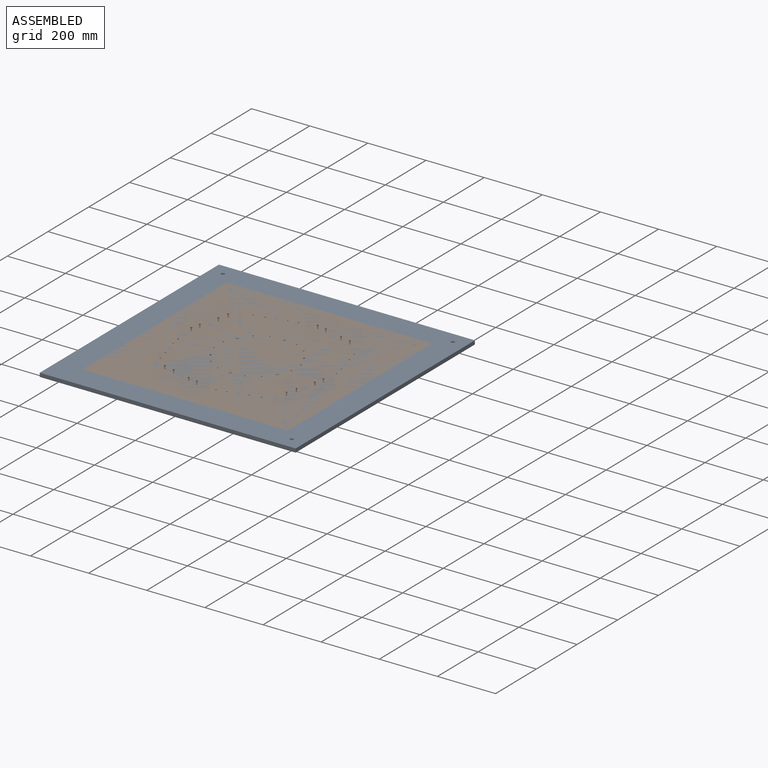
[diagram: assembled view]
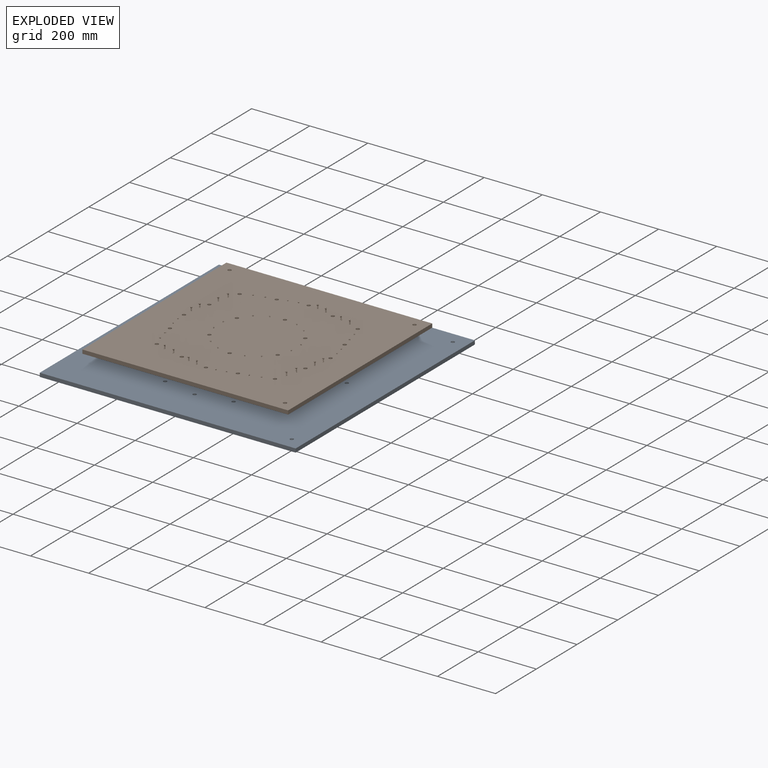
[diagram: exploded view]
GUIDED TOUR — FREECAD ASSEMBLY "Stator_Mold_BoltShaftLayer_Circular"

This assembly has 2 components, labeled P0..P1 below (a component is one placed body or linked part; the same part can appear more than once), held together by 0 modeled joints plus 1 derived contact edge. A joint is a constraint between two components; its type names the relative motion it leaves free:
  CONTACT — a derived adjacency edge — the two components touch in the source model (clearance under 2% of the assembly's diagonal); it is measured from the geometry, not a modeled constraint.
Axis/direction vectors are unit vectors and 'through' points are millimeter coordinates, both in the assembly's world frame.

MATES
  1. CONTACT "contact_0_1": P0 <-> P1, contact direction (0.000, 0.000, 1.000) through (116.82, 61.81, 0.00) mm (derived from contact, not a modeled constraint)

ASSEMBLY ORDER
  1. P1 — the base component [order verified]
  2. P0 [order verified]
Order-tag legend:
  [order verified] — this step's position reverses a verified removal order: the component was checked to insert without passing through the ones already placed.

Of the 2 components, 2 carry a construction recipe — the FreeCAD feature program (sketches with constraints, then the solid features that consume them) that regenerates the part from scratch, quoted from this document or from the linked companion document it references; the rest are supplied as boundary geometry only. The tour below walks the components in assembly order: each is shown spotlighted twice — in the assembled view, then in the exploded view, where a leader line traces a displaced component back to its assembled socket (components that stay in place when exploded have no leader line; saturated green if recipe-attached, orange if geometry-only; every other component desaturated gray) — followed by its recipe or geometry summary and the mates that hold it.
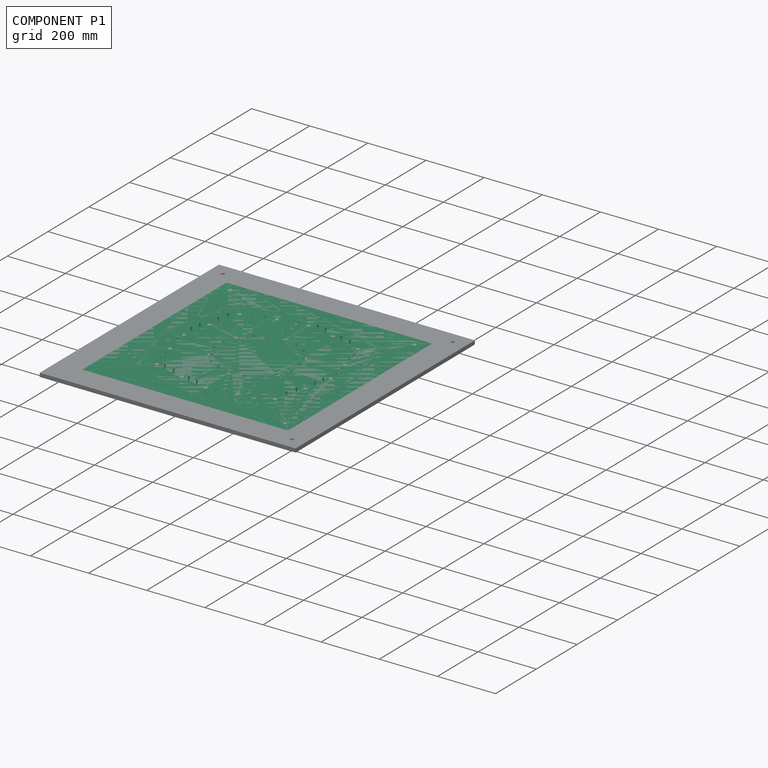
[diagram: component P1 — assembled]
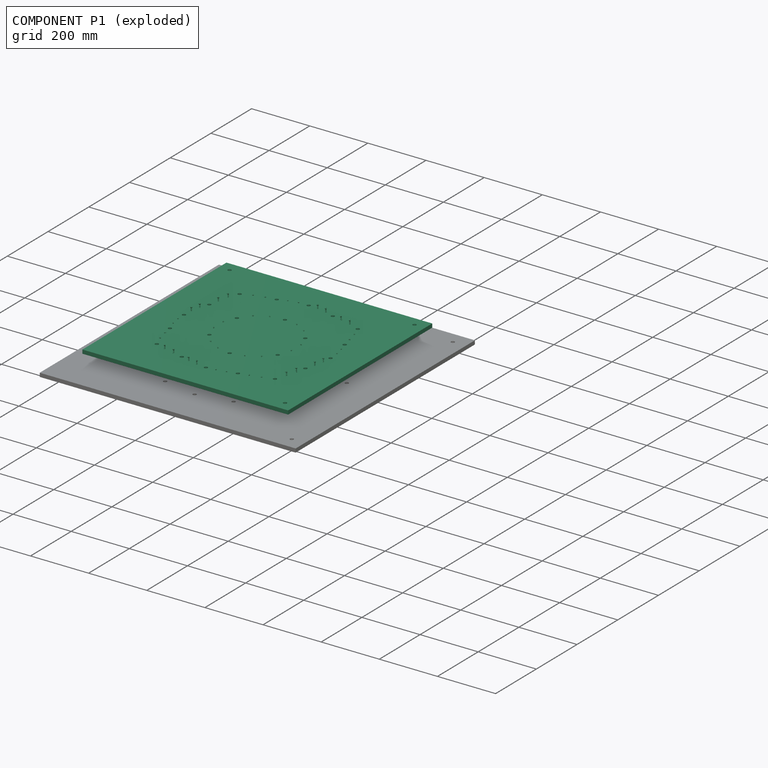
[diagram: component P1 — exploded]
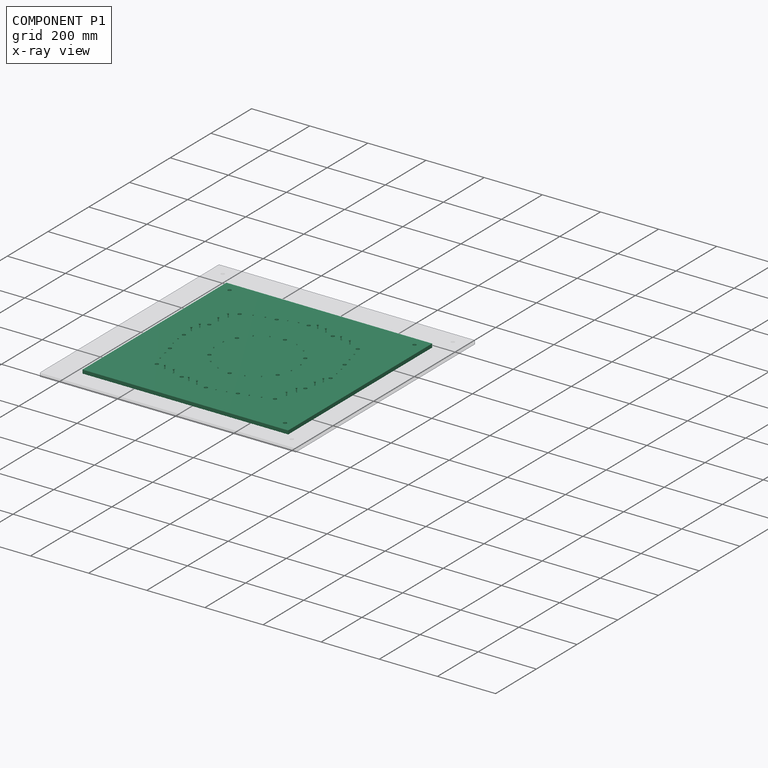
[diagram: component P1 — x-ray view]
COMPONENT P1 — recipe-attached ("Stator_Mold_BoltShaftLayer_Assembly", modeled in this document).
Held by: resting contact with P0 (derived edge).
Construction recipe (the document's own serialized feature program — sketch geometry with constraints, then the solid features built on it; lengths are millimeters unless a unit is written):

FEATURE [PartDesign::Plane] DatumPlane001  label="DatumPlane"
  AttachmentOffset = pos=(0,0,13) rot=(0,0,1;0rad)
  Length = 849.239
  MapMode = 5
  Placement = pos=(0,0,13) rot=(0,0,1;0rad)
  ResizeMode = 0
  Support = -> [XY_Plane]
  Width = 849.239
  expr: .AttachmentOffset.Base.z = Spreadsheet.StatorThickness
FEATURE [Sketcher::SketchObject] Sketch005  label="OuterScrewsSketch"
  AttachmentOffset = pos=(0,0,0) rot=(0,0,1;0.785398rad)
  FullyConstrained = true
  MapMode = 5
  Placement = pos=(0,0,13) rot=(0,0,1;0.785398rad)
  Support = -> [DatumPlane001]
  expr: .AttachmentOffset.Rotation.Angle = Spreadsheet.StatorMoldHolesSketchAngle
  expr: Constraints[16] = Spreadsheet.EarAngle
  expr: Constraints[21] = Spreadsheet.SpokeAngle
  expr: Constraints[23] = Spreadsheet.StatorMoldScrewHoleRadius
  expr: Constraints[25] = Spreadsheet.SpokeAngle
  expr: Constraints[29] = Spreadsheet.LargeHoleAngle
  expr: Constraints[34] = Spreadsheet.SpokeAngle
  expr: Constraints[38] = Spreadsheet.SpokeAngle
  expr: Constraints[3] = Spreadsheet.LengthMiddleHoles
  expr: Constraints[6] = Spreadsheet.EarSize
  sketch-geometry (18):
    g0: Circle CenterX=0 CenterY=0 CenterZ=0 NormalX=0 NormalY=0 NormalZ=1 AngleXU=0 Radius=252.29
    g1: LineSegment StartX=0 StartY=0 StartZ=0 EndX=0 EndY=-252.29 EndZ=0
    g2: Circle CenterX=0 CenterY=-252.29 CenterZ=0 NormalX=0 NormalY=0 NormalZ=1 AngleXU=0 Radius=35
    g3: LineSegment StartX=17.7851 StartY=-282.434 StartZ=0 EndX=128.2 EndY=-217.29 EndZ=0
    g4: LineSegment StartX=-17.7851 StartY=-282.434 StartZ=0 EndX=-128.2 EndY=-217.29 EndZ=0
    g5: LineSegment StartX=0 StartY=0 StartZ=0 EndX=-178.396 EndY=-178.396 EndZ=0
    g6: LineSegment StartX=0 StartY=0 StartZ=0 EndX=178.396 EndY=-178.396 EndZ=0
    g7: ArcOfCircle CenterX=0 CenterY=0 CenterZ=0 NormalX=0 NormalY=0 NormalZ=1 AngleXU=0 Radius=252.29 StartAngle=3.92699 EndAngle=4.17936
    g8: ArcOfCircle CenterX=0 CenterY=0 CenterZ=0 NormalX=0 NormalY=0 NormalZ=1 AngleXU=0 Radius=252.29 StartAngle=5.24542 EndAngle=5.49779
    g9: LineSegment StartX=0 StartY=0 StartZ=0 EndX=-153.584 EndY=-200.155 EndZ=0
    g10: Circle CenterX=-153.584 CenterY=-200.155 CenterZ=0 NormalX=0 NormalY=0 NormalZ=1 AngleXU=0 Radius=2
    g11: LineSegment StartX=0 StartY=0 StartZ=0 EndX=-126.145 EndY=-218.49 EndZ=0
    g12: Circle CenterX=-126.145 CenterY=-218.49 CenterZ=0 NormalX=0 NormalY=0 NormalZ=1 AngleXU=0 Radius=2
    g13: LineSegment StartX=0 StartY=0 StartZ=0 EndX=-96.5472 EndY=-233.086 EndZ=0
    g14: LineSegment StartX=0 StartY=0 StartZ=0 EndX=-67.7752 EndY=-252.941 EndZ=0
    g15: Circle CenterX=-67.7752 CenterY=-252.941 CenterZ=0 NormalX=0 NormalY=0 NormalZ=1 AngleXU=0 Radius=2
    g16: LineSegment StartX=0 StartY=0 StartZ=0 EndX=-35.7851 EndY=-271.815 EndZ=0
    g17: Circle CenterX=-35.7851 CenterY=-271.815 CenterZ=0 NormalX=0 NormalY=0 NormalZ=1 AngleXU=0 Radius=2
  constraints (44):
    c: Coincident(g0,g-1)
    c: Coincident(g1,g-1)
    c: Vertical(g1)
    c: Radius(g0) = 252.29
    c: Coincident(g2,g1)
    c: Tangent(g3,g0)
    c: Radius(g2) = 35
    c: Symmetric(g6,g5,g1)
    c: Coincident(g7,g5)
    c: Coincident(g7,g4)
    c: Coincident(g8,g6)
    c: Coincident(g8,g3)
    c: Coincident(g6,g5)
    c: Coincident(g5,g7)
    c: Coincident(g5,g-1)
    c: Coincident(g8,g5)
    c: Angle(g5,g6) = 1.5708
    c: Tangent(g3,g2) = -1.5708
    c: Tangent(g4,g0) = 1.5708
    c: Coincident(g9,g5)
    c: PointOnObject(g9,g7)
    c: Angle(g5,g9) = 0.1309
    c: Coincident(g10,g9)
    c: Radius(g10) = 2
    c: Coincident(g11,g-1)
    c: Angle(g9,g11) = 0.1309
    c: PointOnObject(g12,g7)
    c: Coincident(g12,g11)
    c: Coincident(g13,g-1)
    c: Angle(g5,g13) = 0.392699
    c: Tangent(g4,g2) = 1.5708
    c: PointOnObject(g1,g0)
    c: Coincident(g14,g-1)
    c: PointOnObject(g14,g4)
    c: Angle(g13,g14) = 0.1309
    c: Coincident(g15,g14)
    c: Coincident(g16,g-1)
    c: PointOnObject(g16,g4)
    c: Angle(g14,g16) = 0.1309
    c: Coincident(g17,g16)
    c: PointOnObject(g13,g0)
    c: Equal(g17,g15)
    c: Equal(g15,g12)
    c: Equal(g12,g10)
FEATURE [PartDesign::Mirrored] Mirrored  label="OuterScrewsMirrored"
  MirrorPlane = -> Sketch005 [V_Axis]
FEATURE [PartDesign::PolarPattern] PolarPattern002  label="OuterScrewsPolarPattern"
  Angle = 360
  Axis = -> Sketch005 [N_Axis]
  Occurrences = 4
  expr: Occurrences = Spreadsheet.NumberOfHoles
FEATURE [Sketcher::SketchObject] Sketch  label="InnerScrewsSketch"
  FullyConstrained = true
  MapMode = 5
  Placement = pos=(0,0,13) rot=(0,0,1;0rad)
  Support = -> [DatumPlane001]
  expr: Constraints[3] = Spreadsheet.IslandInnerRadius
  expr: Constraints[4] = Spreadsheet.StatorMoldIslandScrewAngle
  expr: Constraints[6] = Spreadsheet.StatorMoldScrewHoleRadius
  sketch-geometry (3):
    g0: Circle CenterX=0 CenterY=0 CenterZ=0 NormalX=0 NormalY=0 NormalZ=1 AngleXU=0 Radius=135.644
    g1: LineSegment StartX=0 StartY=0 StartZ=0 EndX=-46.393 EndY=127.464 EndZ=0
    g2: Circle CenterX=-46.393 CenterY=127.464 CenterZ=0 NormalX=0 NormalY=0 NormalZ=1 AngleXU=0 Radius=2
  constraints (7):
    c: Coincident(g0,g-1)
    c: Coincident(g1,g0)
    c: PointOnObject(g1,g0)
    c: Radius(g0) = 135.644
    c: Angle(g-2,g1) = 0.349066
    c: Coincident(g2,g1)
    c: Radius(g2) = 2
FEATURE [PartDesign::FeatureBase] BaseFeature
  BaseFeature = -> Binder
FEATURE [PartDesign::Pocket] Pocket001  label="OuterScrewsPocket"
  BaseFeature = -> BaseFeature
  Direction = (0,0,-1)
  Length = 5
  Length2 = 100
  Profile = -> Sketch005
  Type = 1
FEATURE [PartDesign::MultiTransform] MultiTransform  label="OuterScrewsMultiTransform"
  BaseFeature = -> Pocket001
  Originals = -> [Pocket001]
  Transformations = -> [Mirrored,PolarPattern002]
FEATURE [PartDesign::Pocket] Pocket  label="InnerScrewsPocket"
  BaseFeature = -> MultiTransform
  Direction = (0,0,-1)
  Length = 5
  Length2 = 100
  Profile = -> Sketch
  Type = 1
FEATURE [PartDesign::PolarPattern] PolarPattern  label="InnerScrewsPolarPattern"
  Angle = 360
  Axis = -> Z_Axis
  BaseFeature = -> Pocket
  Occurrences = 18
  Originals = -> [Pocket]
  expr: Occurrences = Spreadsheet.StatorMoldIslandNumberOfScrewSectors
FEATURE [PartDesign::Body] Body  label="Stator_Mold_BoltShaftLayer"
  BaseFeature = -> Binder
  Group = -> [BaseFeature,DatumPlane001,Sketch005,Pocket001,MultiTransform,Mirrored,PolarPattern002,Sketch,Pocket,PolarPattern]
  Openafpm_Flat = true
  Origin = -> Origin
  Tip = -> PolarPattern
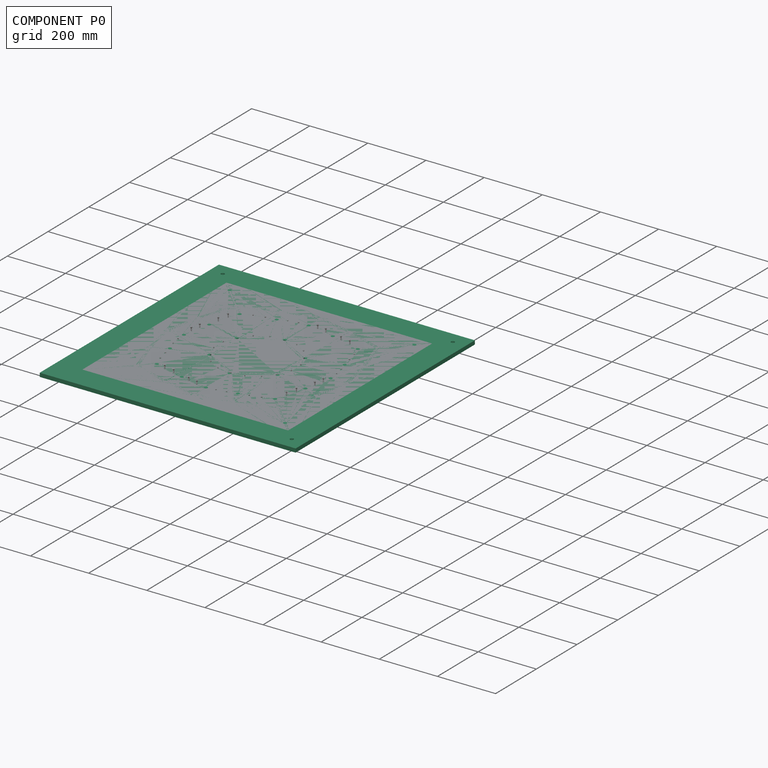
[diagram: component P0 — assembled]
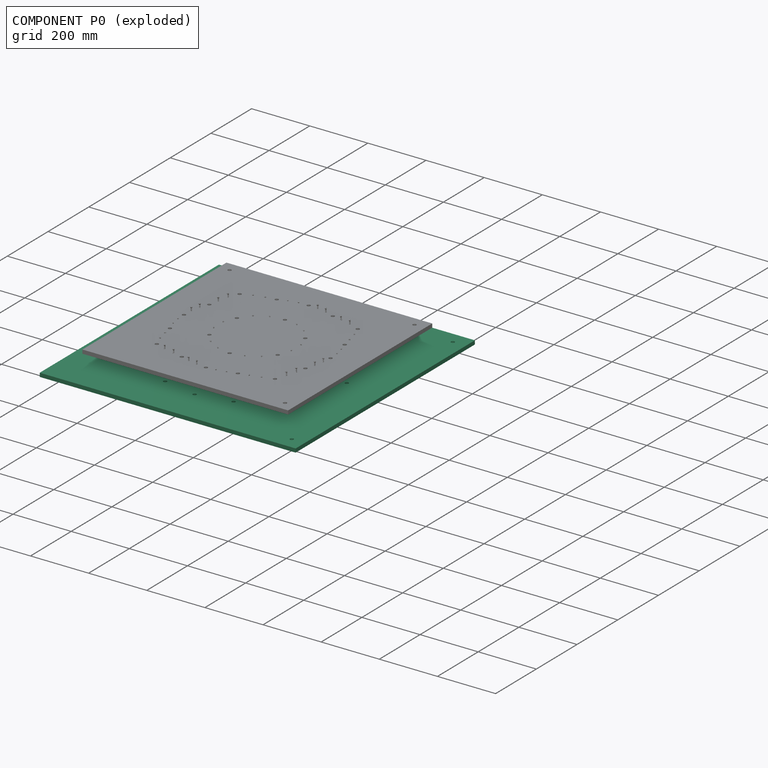
[diagram: component P0 — exploded]
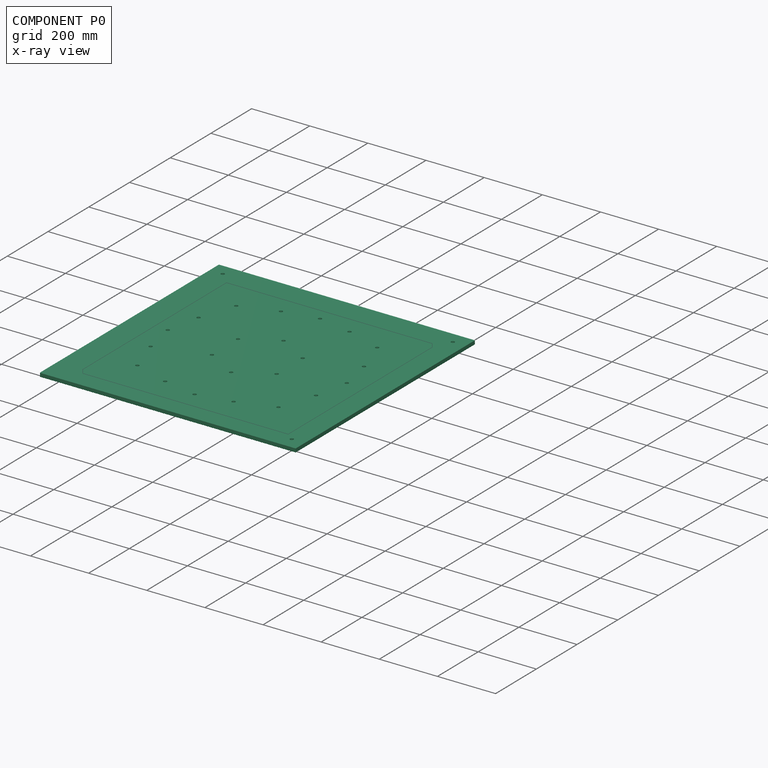
[diagram: component P0 — x-ray view]
COMPONENT P0 — recipe-attached ("Stator_Mold_BoltShaftPattern", modeled in this document).
Held by: resting contact with P1 (derived edge).
Construction recipe (the document's own serialized feature program — sketch geometry with constraints, then the solid features built on it; lengths are millimeters unless a unit is written):

FEATURE [PartDesign::Plane] DatumPlane001  label="DatumPlane"
  AttachmentOffset = pos=(0,0,13) rot=(0,0,1;0rad)
  Length = 849.239
  MapMode = 5
  Placement = pos=(0,0,13) rot=(0,0,1;0rad)
  ResizeMode = 0
  Support = -> [XY_Plane]
  Width = 849.239
  expr: .AttachmentOffset.Base.z = Spreadsheet.StatorThickness
FEATURE [Sketcher::SketchObject] Sketch005  label="OuterScrewsSketch"
  AttachmentOffset = pos=(0,0,0) rot=(0,0,1;0.785398rad)
  FullyConstrained = true
  MapMode = 5
  Placement = pos=(0,0,13) rot=(0,0,1;0.785398rad)
  Support = -> [DatumPlane001]
  expr: .AttachmentOffset.Rotation.Angle = Spreadsheet.StatorMoldHolesSketchAngle
  expr: Constraints[16] = Spreadsheet.EarAngle
  expr: Constraints[21] = Spreadsheet.SpokeAngle
  expr: Constraints[23] = Spreadsheet.StatorMoldScrewHoleRadius
  expr: Constraints[25] = Spreadsheet.SpokeAngle
  expr: Constraints[29] = Spreadsheet.LargeHoleAngle
  expr: Constraints[34] = Spreadsheet.SpokeAngle
  expr: Constraints[38] = Spreadsheet.SpokeAngle
  expr: Constraints[3] = Spreadsheet.LengthMiddleHoles
  expr: Constraints[6] = Spreadsheet.EarSize
  sketch-geometry (18):
    g0: Circle CenterX=0 CenterY=0 CenterZ=0 NormalX=0 NormalY=0 NormalZ=1 AngleXU=0 Radius=252.29
    g1: LineSegment StartX=0 StartY=0 StartZ=0 EndX=0 EndY=-252.29 EndZ=0
    g2: Circle CenterX=0 CenterY=-252.29 CenterZ=0 NormalX=0 NormalY=0 NormalZ=1 AngleXU=0 Radius=35
    g3: LineSegment StartX=17.7851 StartY=-282.434 StartZ=0 EndX=128.2 EndY=-217.29 EndZ=0
    g4: LineSegment StartX=-17.7851 StartY=-282.434 StartZ=0 EndX=-128.2 EndY=-217.29 EndZ=0
    g5: LineSegment StartX=0 StartY=0 StartZ=0 EndX=-178.396 EndY=-178.396 EndZ=0
    g6: LineSegment StartX=0 StartY=0 StartZ=0 EndX=178.396 EndY=-178.396 EndZ=0
    g7: ArcOfCircle CenterX=0 CenterY=0 CenterZ=0 NormalX=0 NormalY=0 NormalZ=1 AngleXU=0 Radius=252.29 StartAngle=3.92699 EndAngle=4.17936
    g8: ArcOfCircle CenterX=0 CenterY=0 CenterZ=0 NormalX=0 NormalY=0 NormalZ=1 AngleXU=0 Radius=252.29 StartAngle=5.24542 EndAngle=5.49779
    g9: LineSegment StartX=0 StartY=0 StartZ=0 EndX=-153.584 EndY=-200.155 EndZ=0
    g10: Circle CenterX=-153.584 CenterY=-200.155 CenterZ=0 NormalX=0 NormalY=0 NormalZ=1 AngleXU=0 Radius=2
    g11: LineSegment StartX=0 StartY=0 StartZ=0 EndX=-126.145 EndY=-218.49 EndZ=0
    g12: Circle CenterX=-126.145 CenterY=-218.49 CenterZ=0 NormalX=0 NormalY=0 NormalZ=1 AngleXU=0 Radius=2
    g13: LineSegment StartX=0 StartY=0 StartZ=0 EndX=-96.5472 EndY=-233.086 EndZ=0
    g14: LineSegment StartX=0 StartY=0 StartZ=0 EndX=-67.7752 EndY=-252.941 EndZ=0
    g15: Circle CenterX=-67.7752 CenterY=-252.941 CenterZ=0 NormalX=0 NormalY=0 NormalZ=1 AngleXU=0 Radius=2
    g16: LineSegment StartX=0 StartY=0 StartZ=0 EndX=-35.7851 EndY=-271.815 EndZ=0
    g17: Circle CenterX=-35.7851 CenterY=-271.815 CenterZ=0 NormalX=0 NormalY=0 NormalZ=1 AngleXU=0 Radius=2
  constraints (44):
    c: Coincident(g0,g-1)
    c: Coincident(g1,g-1)
    c: Vertical(g1)
    c: Radius(g0) = 252.29
    c: Coincident(g2,g1)
    c: Tangent(g3,g0)
    c: Radius(g2) = 35
    c: Symmetric(g6,g5,g1)
    c: Coincident(g7,g5)
    c: Coincident(g7,g4)
    c: Coincident(g8,g6)
    c: Coincident(g8,g3)
    c: Coincident(g6,g5)
    c: Coincident(g5,g7)
    c: Coincident(g5,g-1)
    c: Coincident(g8,g5)
    c: Angle(g5,g6) = 1.5708
    c: Tangent(g3,g2) = -1.5708
    c: Tangent(g4,g0) = 1.5708
    c: Coincident(g9,g5)
    c: PointOnObject(g9,g7)
    c: Angle(g5,g9) = 0.1309
    c: Coincident(g10,g9)
    c: Radius(g10) = 2
    c: Coincident(g11,g-1)
    c: Angle(g9,g11) = 0.1309
    c: PointOnObject(g12,g7)
    c: Coincident(g12,g11)
    c: Coincident(g13,g-1)
    c: Angle(g5,g13) = 0.392699
    c: Tangent(g4,g2) = 1.5708
    c: PointOnObject(g1,g0)
    c: Coincident(g14,g-1)
    c: PointOnObject(g14,g4)
    c: Angle(g13,g14) = 0.1309
    c: Coincident(g15,g14)
    c: Coincident(g16,g-1)
    c: PointOnObject(g16,g4)
    c: Angle(g14,g16) = 0.1309
    c: Coincident(g17,g16)
    c: PointOnObject(g13,g0)
    c: Equal(g17,g15)
    c: Equal(g15,g12)
    c: Equal(g12,g10)
FEATURE [PartDesign::Mirrored] Mirrored  label="OuterScrewsMirrored"
  MirrorPlane = -> Sketch005 [V_Axis]
FEATURE [PartDesign::PolarPattern] PolarPattern002  label="OuterScrewsPolarPattern"
  Angle = 360
  Axis = -> Sketch005 [N_Axis]
  Occurrences = 4
  expr: Occurrences = Spreadsheet.NumberOfHoles
FEATURE [Sketcher::SketchObject] Sketch  label="InnerScrewsSketch"
  FullyConstrained = true
  MapMode = 5
  Placement = pos=(0,0,13) rot=(0,0,1;0rad)
  Support = -> [DatumPlane001]
  expr: Constraints[3] = Spreadsheet.IslandInnerRadius
  expr: Constraints[4] = Spreadsheet.StatorMoldIslandScrewAngle
  expr: Constraints[6] = Spreadsheet.StatorMoldScrewHoleRadius
  sketch-geometry (3):
    g0: Circle CenterX=0 CenterY=0 CenterZ=0 NormalX=0 NormalY=0 NormalZ=1 AngleXU=0 Radius=135.644
    g1: LineSegment StartX=0 StartY=0 StartZ=0 EndX=-46.393 EndY=127.464 EndZ=0
    g2: Circle CenterX=-46.393 CenterY=127.464 CenterZ=0 NormalX=0 NormalY=0 NormalZ=1 AngleXU=0 Radius=2
  constraints (7):
    c: Coincident(g0,g-1)
    c: Coincident(g1,g0)
    c: PointOnObject(g1,g0)
    c: Radius(g0) = 135.644
    c: Angle(g-2,g1) = 0.349066
    c: Coincident(g2,g1)
    c: Radius(g2) = 2
FEATURE [PartDesign::FeatureBase] BaseFeature
  BaseFeature = -> Binder
FEATURE [PartDesign::Pocket] Pocket001  label="OuterScrewsPocket"
  BaseFeature = -> BaseFeature
  Direction = (0,0,-1)
  Length = 5
  Length2 = 100
  Profile = -> Sketch005
  Type = 1
FEATURE [PartDesign::MultiTransform] MultiTransform  label="OuterScrewsMultiTransform"
  BaseFeature = -> Pocket001
  Originals = -> [Pocket001]
  Transformations = -> [Mirrored,PolarPattern002]
FEATURE [PartDesign::Pocket] Pocket  label="InnerScrewsPocket"
  BaseFeature = -> MultiTransform
  Direction = (0,0,-1)
  Length = 5
  Length2 = 100
  Profile = -> Sketch
  Type = 1
FEATURE [PartDesign::PolarPattern] PolarPattern  label="InnerScrewsPolarPattern"
  Angle = 360
  Axis = -> Z_Axis
  BaseFeature = -> Pocket
  Occurrences = 18
  Originals = -> [Pocket]
  expr: Occurrences = Spreadsheet.StatorMoldIslandNumberOfScrewSectors
FEATURE [PartDesign::Body] Body  label="Stator_Mold_BoltShaftLayer"
  BaseFeature = -> Binder
  Group = -> [BaseFeature,DatumPlane001,Sketch005,Pocket001,MultiTransform,Mirrored,PolarPattern002,Sketch,Pocket,PolarPattern]
  Openafpm_Flat = true
  Origin = -> Origin
  Tip = -> PolarPattern
PROVENANCE & LICENSES
Assembly and component geometry: a FreeCAD (.FCStd) document from a public repository crawl; components, placements and joints were extracted with FreeCAD and each solid tessellated.
Construction recipes: the document's own serialized feature recipes (and, for linked parts, the recipes of companion documents from the same project).
License: lgpl-3.0.
Joints: native FreeCAD joints and A2plus constraints are mapped to standard mate types; edges marked 'derived from contact' connect touching components and are measured from the geometry, not modeled.
Verification: 2 of this assembly's 2 components carry a construction recipe (2 from this document itself); the rest are geometry-only. Every component's tessellation passed the extraction mesh gates (mesh-volume checksum against the B-rep where available, bounding-box inflation <= 2%).
Renders: orthographic iso camera (az 35 / el 25); the floor grid conveys scale (grid pitch printed in each image; no ruler). In the exploded view each component is displaced by its stored offset vector: the offsets alone carry the explosion direction (mate normal/axis signs are not orientation cues and do not encode it), and separation distances are assigned per mate-chain, not proportionally to assembly-order depth.
